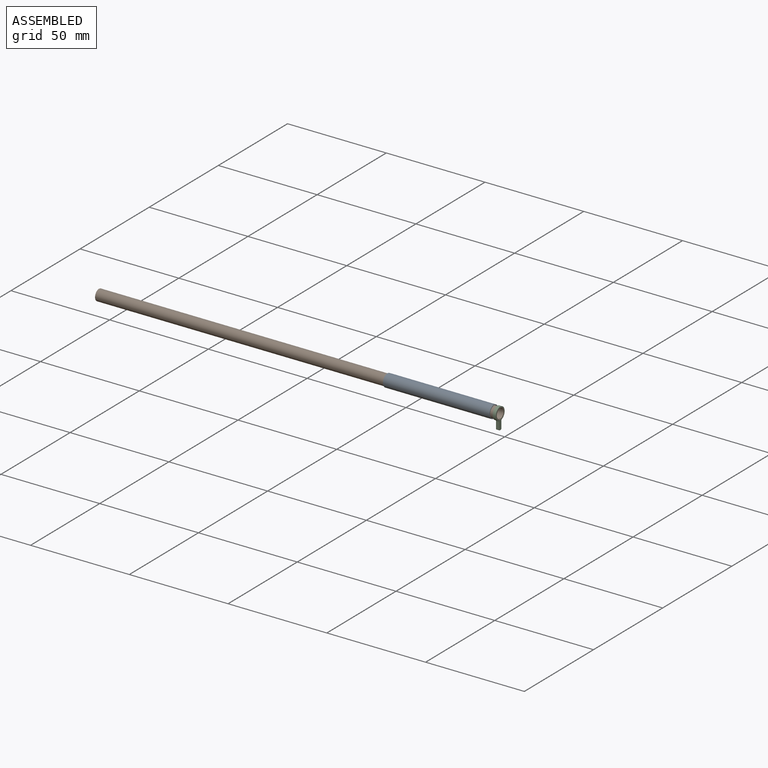
[diagram: assembled view]
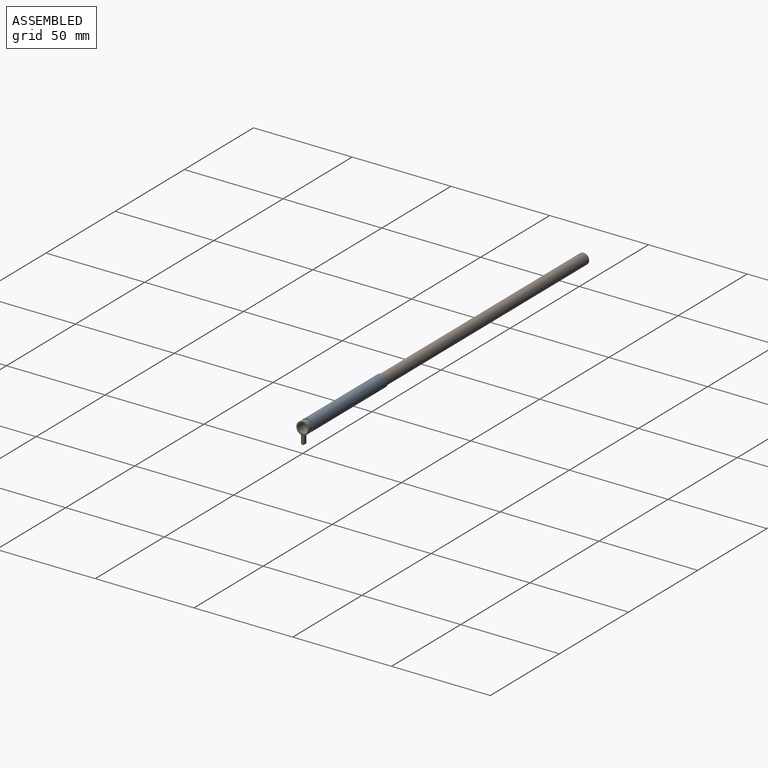
[diagram: assembled view, second angle]
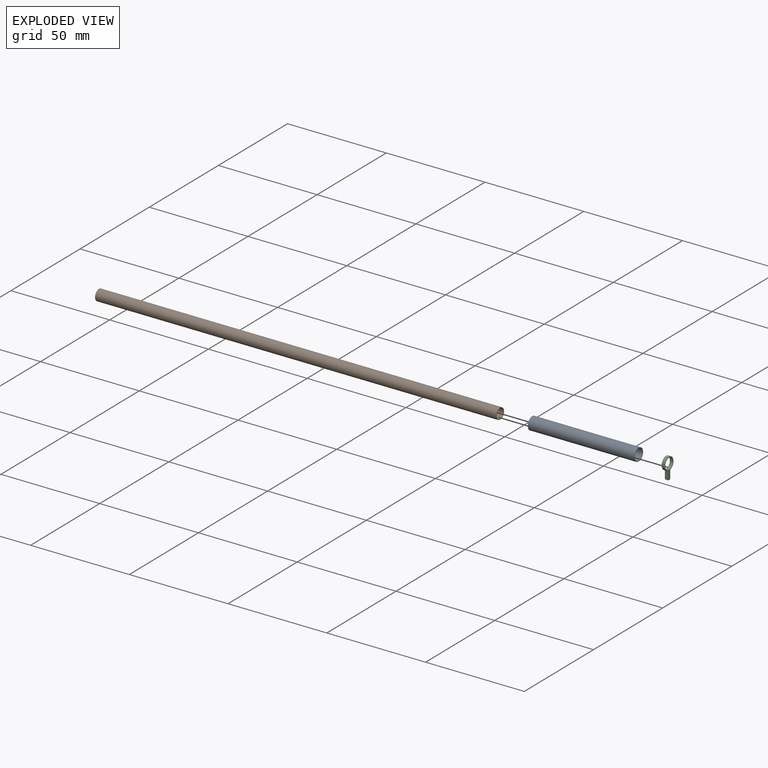
[diagram: exploded view]
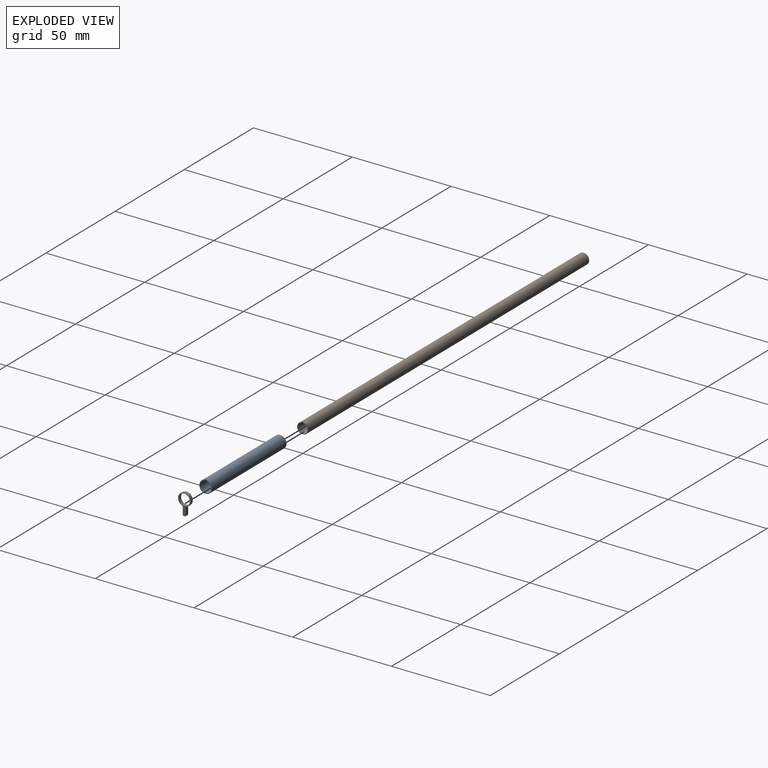
[diagram: exploded view, second angle]
ASSEMBLY  parts=3 mates=2
PART A: 7 faces, bbox 54x6.4x6.4 mm
  f0: cylinder r=2.84mm len=53.98mm, axis (1,0,0), area 964.3mm2, adj f2,f3,f4,f5,f6
  f1: cylinder r=3.17mm len=53.98mm, axis (1,0,0), area 1076.3mm2, adj f2,f3,f4,f5,f6
  f2: plane 6.3x2.78mm, normal (1,0,0), area 2.9mm2, adj f0,f1,f5,f6
  f3: plane 6.3x2.78mm, normal (1,0,0), area 2.9mm2, adj f0,f1,f5,f6
  f4: plane 6.35x6.35mm, normal (-1,0,0), area 6.2mm2, adj f0,f1
  f5: cylinder r=0.4mm len=0.79mm, axis (0,0,-1), area 0.4mm2, adj f0,f1,f2,f3
  f6: cylinder r=0.4mm len=0.79mm, axis (0,0,-1), area 0.4mm2, adj f0,f1,f2,f3
PART B: 7 faces, bbox 203.2x5.6x5.6 mm
  f0: cylinder r=2.45mm len=203.2mm, axis (1,0,0), area 3128.9mm2, adj f2,f3,f4,f5,f6
  f1: cylinder r=2.78mm len=203.2mm, axis (1,0,0), area 3546.5mm2, adj f2,f3,f4,f5,f6
  f2: plane 5.5x2.38mm, normal (1,0,0), area 2.4mm2, adj f0,f1,f5,f6
  f3: plane 5.5x2.38mm, normal (1,0,0), area 2.4mm2, adj f0,f1,f5,f6
  f4: plane 5.56x5.56mm, normal (-1,0,0), area 5.4mm2, adj f0,f1
  f5: cylinder r=0.4mm len=0.79mm, axis (0,0,-1), area 0.4mm2, adj f0,f1,f2,f3
  f6: cylinder r=0.4mm len=0.79mm, axis (0,0,-1), area 0.4mm2, adj f0,f1,f2,f3
PART C: 11 faces, bbox 1.6x6.4x10.7 mm
  f0: plane 3.59x1.59mm, normal (0,1,0), area 5.7mm2, adj f5,f6,f7,f10
  f1: cylinder r=3.17mm len=6.35mm, axis (1,0,0), area 28mm2, adj f5,f6,f7,f8
  f2: plane 3.59x1.59mm, normal (0,-1,0), area 5.7mm2, adj f5,f6,f8,f9
  f3: cylinder r=2.78mm len=5.56mm, axis (1,0,0), area 27.7mm2, adj f5,f6
  f4: plane 1.59x0.57mm, normal (0,0,-1), area 0.9mm2, adj f5,f6,f9,f10
  f5: plane 10.72x6.35mm, normal (-1,0,0), area 14.3mm2, adj f0,f1,f2,f3,f4,f7,f8,f9
  f6: plane 10.72x6.35mm, normal (1,0,0), area 14.3mm2, adj f0,f1,f2,f3,f4,f7,f8,f9
  f7: cylinder r=0.51mm len=1.59mm, axis (1,0,0), area 1mm2, adj f0,f1,f5,f6
  f8: cylinder r=0.51mm len=1.59mm, axis (1,0,0), area 1mm2, adj f1,f2,f5,f6
  f9: cylinder r=0.51mm len=1.59mm, axis (-1,0,0), area 1.3mm2, adj f2,f4,f5,f6
  f10: cylinder r=0.51mm len=1.59mm, axis (-1,0,0), area 1.3mm2, adj f0,f4,f5,f6
PLACE A t=(-4.66,40.19,-11.24)mm fixed
PLACE B t=(-1.49,56.25,-11.43)mm
PLACE C t=(-1.49,67.48,-12.07)mm
MATE fastened B.f0 <-> C.f1  axis (1,0,0) through (-1.49,-1.07,22.18)mm
MATE revolute B.f0 <-> A.f0  axis (1,0,0) through (-1.49,-1.07,22.18)mm
